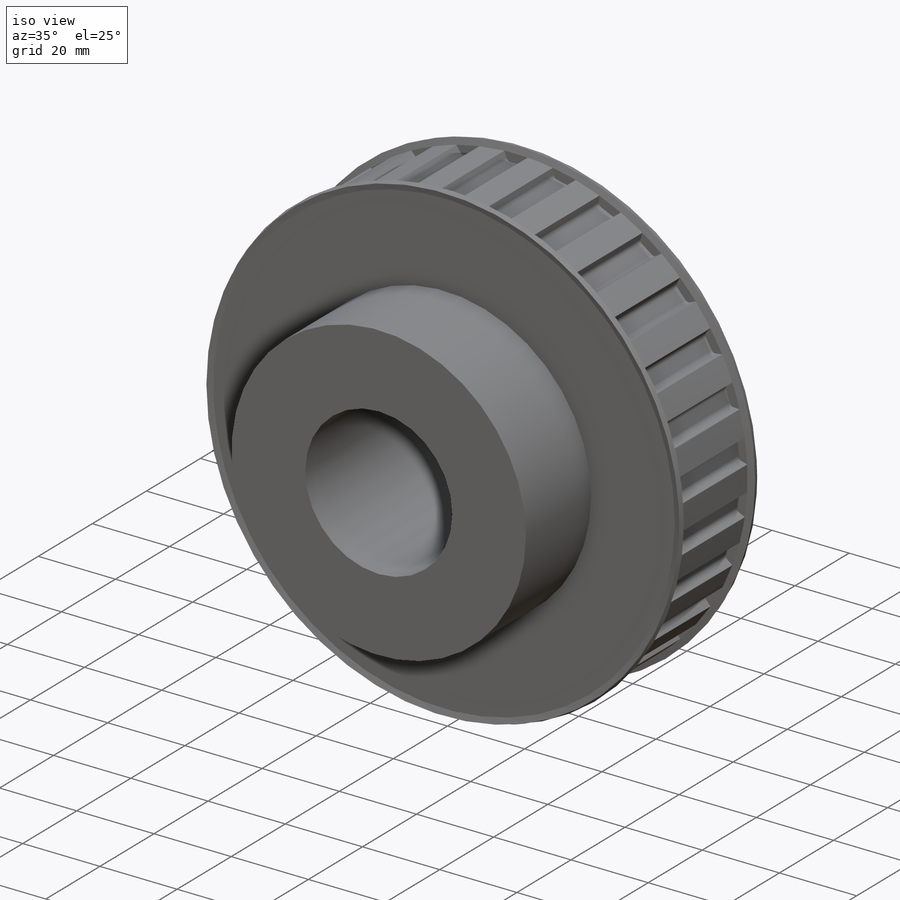
[diagram: iso view]
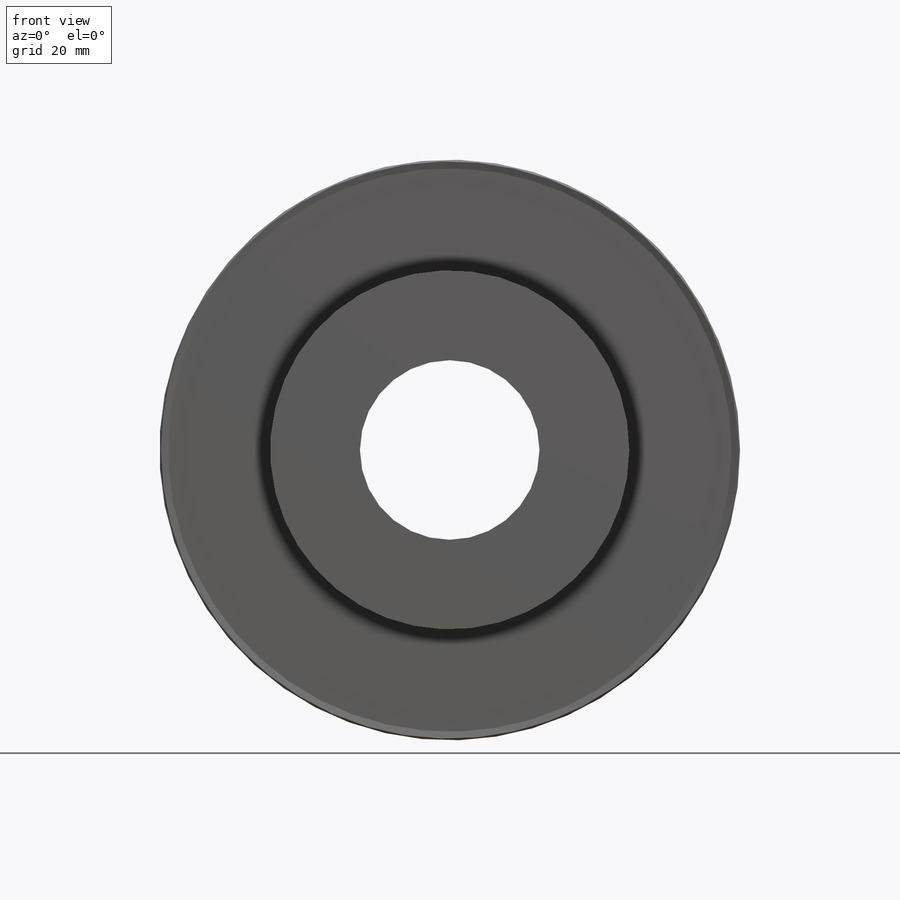
[diagram: front view]
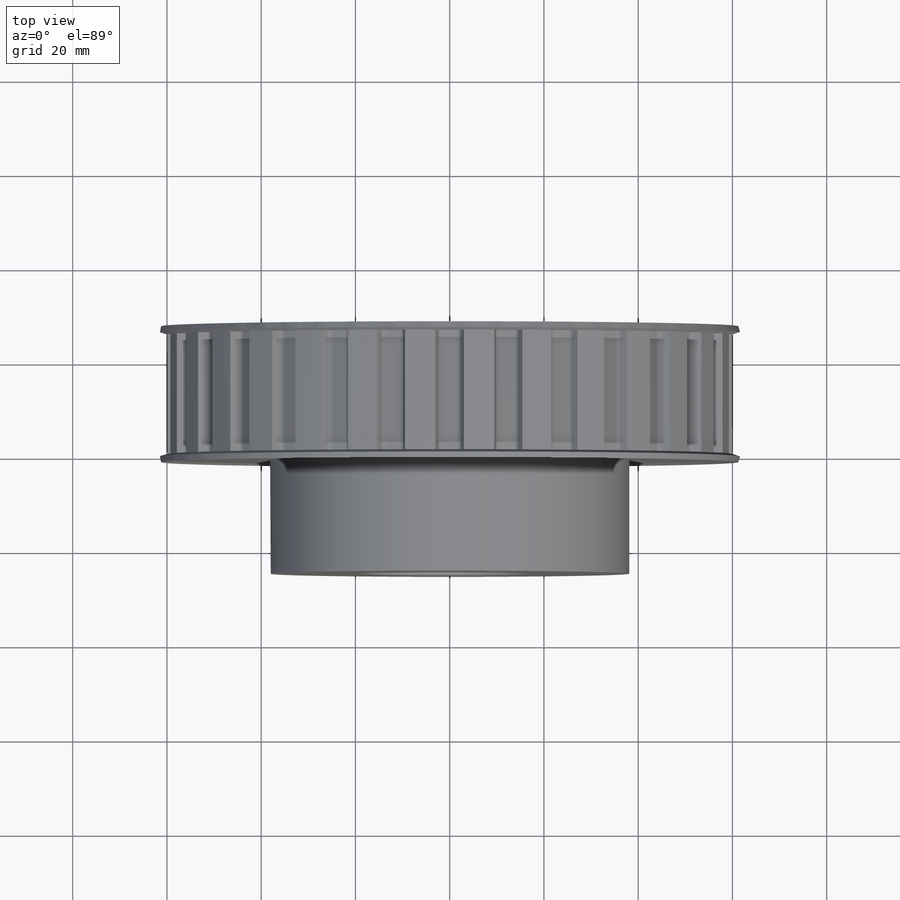
[diagram: top view]
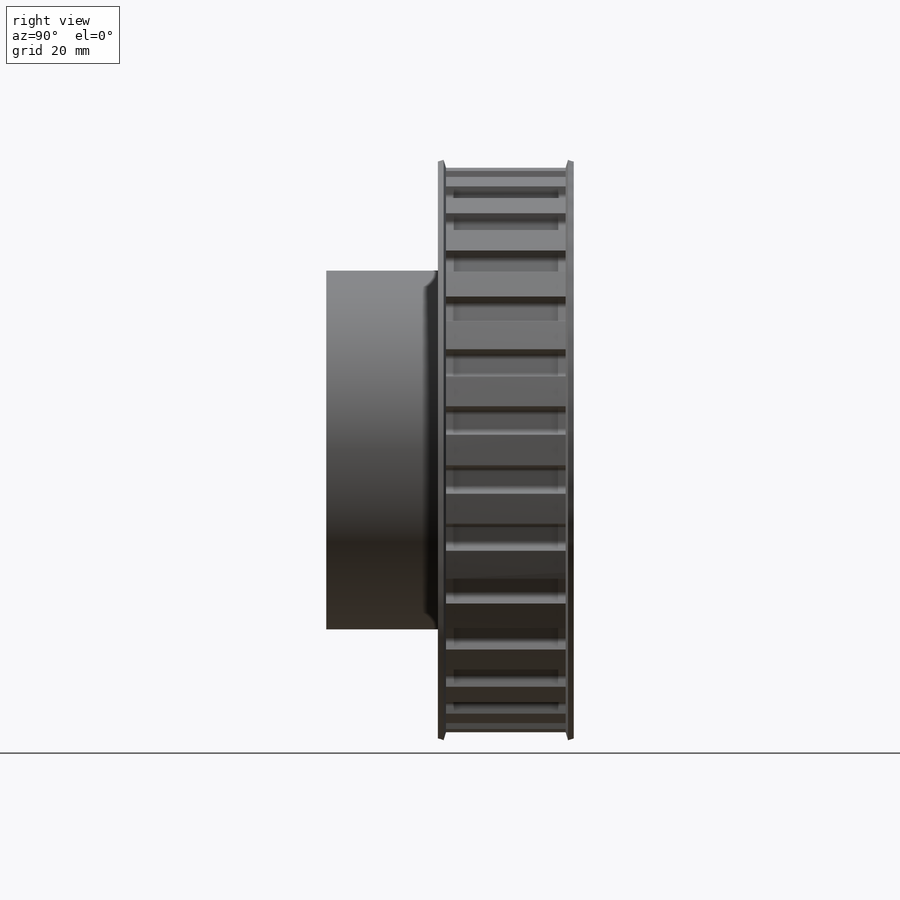
[diagram: right view]
SOLIDWORKS PART (.sldprt)
format: sldprt  version: not decoded by parser v0  size: 802,816 bytes
history: native  units: mm
features: sketch x7, plane x4, cut_extrude x3, revolve x2, pattern_circular x2, material x1, extrude x1 (+8 scaffold rows collapsed)
feature tree (28):
  scaffold x8  (default folders/planes/origin — collapsed)
  material  "6061 Alloy"
  plane  "Plane1"
  plane  "Plane2"
  plane  "Plane3"
  sketch  "Clipboard"  dims[c1.Overall_len=17.4244mm c1.T_dim=6.604mm c1.OAL=17.4244mm c1.D1=50.8mm c1.Show_grvs=36.0deg c2.D1=42.3926mm c2.Num_grvs=36.0deg]
  sketch  "Sketch1"  dims[Outside_dia=22.7838mm Bore_dia=2.54mm]
  extrude  "BasePulley"  Depth=7.112mm Width=7.112mm
  sketch  "Sketch2"  dims[c1.D1=9.525mm c1.Flange_ang=17.0deg c1.Flange_thickness=0.5842mm c2.D1=1.27mm c2.Flange_ht=1.651mm c2.D2=59.9567mm c2.D3=12.7mm c3.D1=119.9134mm c4.D1=163.0deg c5.D1=119.9134mm c5.Flange_ang=17.0deg c6.D1=119.9134mm c7.D1=17.0deg c7.D2=59.9567mm c7.D3=0.5842mm c7.D4=1.27mm c7.Flange_ht=1.651mm c7.D5=1.27mm c7.D6=1.651mm c8.D1=3.556mm c8.D2=11.3919mm c8.Flange_ht=0.508mm]
  revolve  "Flange"  Angle=360deg
  plane  "Plane4"  Offset=3.556mm
  sketch  "Sketch3"  dims[c1.Grv_rad_bot=0.127mm c1.D4=119.9134mm c1.D1=~75.301737mm c1.Grv_ang=40.0deg c2.D1=59.9567mm c3.D1=20.0deg c3.Grv_width=6.1214mm c4.D1=3.0607mm c4.D3=~2.746952mm c4.Grv_ang=40.0deg c5.D3=~2.746952mm c6.D3=20.0deg c6.Grv_width=1.143mm c6.D4=25.4mm c6.Grv_depth=0.508mm]
  cut_extrude  "Groove"  Depth=7.112mm
  pattern_circular  "Grooves"  Count=36 Angle=10deg Num_grvs=36
  sketch  "Sketch4"  dims[Hub_dia=17.1704mm Hub_depth=10.3124mm]
  revolve  "BaseHub"  Angle=360deg
  sketch  "BorSke"  dims[Bore_dia=38.1mm Diameter=6.35mm Key_width=6.35mm T_dim=41.275mm D1=3.175mm]
  cut_extrude  "Bore"  [1 undecoded]
  sketch  "KeySke"  dims[Width=0.254mm Offset=3.429mm]
  cut_extrude  "Keyway"  [1 undecoded]
  pattern_circular  "Keyway2"  Count=2 Angle=90deg
decode coverage: 13 of 15 modeling features carry decoded parameters
note: ~ marks probable driven/reference dimensions
note: 2 parameter values undecoded
note: suppression state not decoded; provenance and decode notes live in map.json
